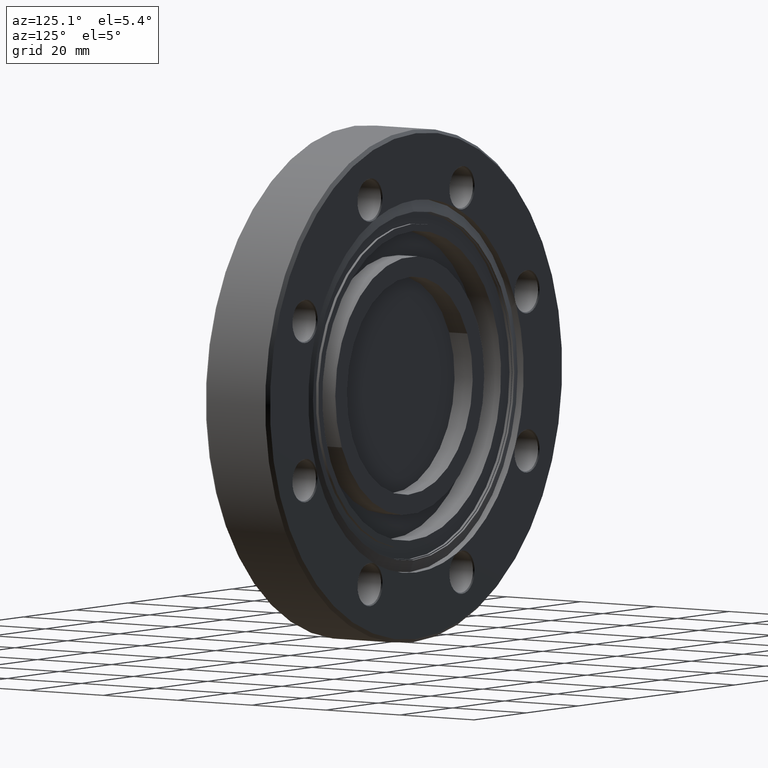
[diagram: clean part render]
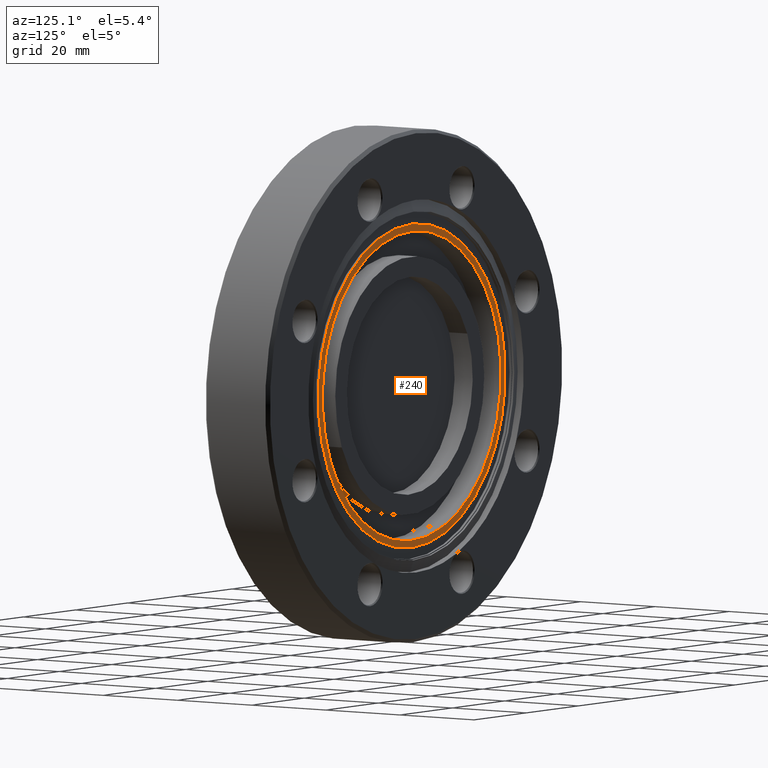
[diagram: same view with one face highlighted and labeled with its STEP entity id]
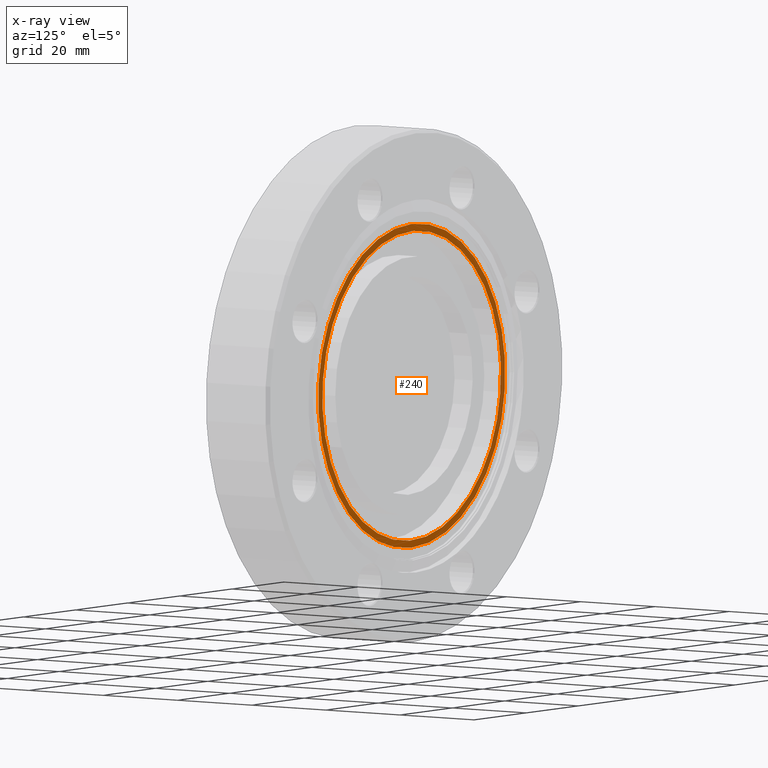
[diagram: x-ray of the same camera — body ghosted, the highlighted face saturated]
A machine part, auxiliary view. The second image highlights one B-rep face of the part: STEP entity #240.
The next image is the same camera in x-ray: the body ghosted, the highlighted face saturated — about 0% of this face is hidden behind the body in this view.
In plain terms, the highlighted planar face has unit normal (-0, 1, -0).
Its self-contained STEP definition (entity closure, byte-faithful):
#5 = AXIS2_PLACEMENT_3D ( 'NONE', #121, #820, #380 ) ;
#37 = EDGE_CURVE ( 'NONE', #2455, #305, #2749, .T. ) ;
#121 = CARTESIAN_POINT ( 'NONE',  ( 0.000000000000000000, -0.04599999999999999922, 0.000000000000000000 ) ) ;
#240 = ADVANCED_FACE ( 'NONE', ( #2310, #920 ), #1802, .T. ) ;
#305 = VERTEX_POINT ( 'NONE', #1151 ) ;
#306 = DIRECTION ( 'NONE',  ( -0.000000000000000000, 1.000000000000000000, -0.000000000000000000 ) ) ;
#380 = DIRECTION ( 'NONE',  ( 0.000000000000000000, 0.000000000000000000, 1.000000000000000000 ) ) ;
#394 = CARTESIAN_POINT ( 'NONE',  ( -1.269264136490842798, -0.04600000000000002004, 0.4569130681192609678 ) ) ;
#417 = DIRECTION ( 'NONE',  ( -1.507351704061755296E-17, 1.000000000000000000, -1.699636614603576539E-17 ) ) ;
#510 = AXIS2_PLACEMENT_3D ( 'NONE', #394, #696, #1790 ) ;
#515 = CARTESIAN_POINT ( 'NONE',  ( 0.000000000000000000, -0.04599999999999999922, 0.000000000000000000 ) ) ;
#519 = ORIENTED_EDGE ( 'NONE', *, *, #611, .F. ) ;
#561 = ORIENTED_EDGE ( 'NONE', *, *, #1535, .T. ) ;
#611 = EDGE_CURVE ( 'NONE', #305, #2455, #1743, .T. ) ;
#654 = EDGE_LOOP ( 'NONE', ( #519, #2871 ) ) ;
#683 = AXIS2_PLACEMENT_3D ( 'NONE', #1022, #306, #2632 ) ;
#696 = DIRECTION ( 'NONE',  ( -1.297276433052638209E-17, 1.000000000000000000, -1.116066071189244055E-17 ) ) ;
#820 = DIRECTION ( 'NONE',  ( -0.000000000000000000, 1.000000000000000000, -0.000000000000000000 ) ) ;
#920 = FACE_BOUND ( 'NONE', #654, .T. ) ;
#1022 = CARTESIAN_POINT ( 'NONE',  ( 0.000000000000000000, -0.04599999999999999922, 0.000000000000000000 ) ) ;
#1151 = CARTESIAN_POINT ( 'NONE',  ( -0.4569130681192608012, -0.04600000000000002004, -1.269264136490842798 ) ) ;
#1313 = EDGE_CURVE ( 'NONE', #2247, #1701, #1323, .T. ) ;
#1323 = CIRCLE ( 'NONE', #5, 1.411500000000000199 ) ;
#1335 = CARTESIAN_POINT ( 'NONE',  ( 1.728588956996489354E-16, -0.04599999999999999922, -1.411500000000000199 ) ) ;
#1363 = DIRECTION ( 'NONE',  ( -0.3387050171380731611, -1.265681983721396522E-17, -0.9408926141518475506 ) ) ;
#1393 = CARTESIAN_POINT ( 'NONE',  ( 0.000000000000000000, -0.04599999999999999922, 1.411500000000000199 ) ) ;
#1450 = DIRECTION ( 'NONE',  ( -1.507351704061755296E-17, 1.000000000000000000, -1.699636614603576539E-17 ) ) ;
#1535 = EDGE_CURVE ( 'NONE', #1701, #2247, #2767, .T. ) ;
#1663 = EDGE_LOOP ( 'NONE', ( #2093, #561 ) ) ;
#1701 = VERTEX_POINT ( 'NONE', #1335 ) ;
#1738 = AXIS2_PLACEMENT_3D ( 'NONE', #515, #1450, #2576 ) ;
#1743 = CIRCLE ( 'NONE', #2982, 1.349000000000000421 ) ;
#1789 = CARTESIAN_POINT ( 'NONE',  ( 0.000000000000000000, -0.04599999999999999922, 0.000000000000000000 ) ) ;
#1790 = DIRECTION ( 'NONE',  ( -0.3387050171380731611, -1.489492359777341978E-17, -0.9408926141518476616 ) ) ;
#1802 = PLANE ( 'NONE',  #510 ) ;
#2093 = ORIENTED_EDGE ( 'NONE', *, *, #1313, .T. ) ;
#2247 = VERTEX_POINT ( 'NONE', #1393 ) ;
#2310 = FACE_OUTER_BOUND ( 'NONE', #1663, .T. ) ;
#2455 = VERTEX_POINT ( 'NONE', #2655 ) ;
#2576 = DIRECTION ( 'NONE',  ( -0.3387050171380731611, -1.265681983721396522E-17, -0.9408926141518475506 ) ) ;
#2632 = DIRECTION ( 'NONE',  ( 0.000000000000000000, 0.000000000000000000, 1.000000000000000000 ) ) ;
#2655 = CARTESIAN_POINT ( 'NONE',  ( 0.4569130681192605792, -0.04599999999999997841, 1.269264136490842576 ) ) ;
#2749 = CIRCLE ( 'NONE', #1738, 1.349000000000000421 ) ;
#2767 = CIRCLE ( 'NONE', #683, 1.411500000000000199 ) ;
#2871 = ORIENTED_EDGE ( 'NONE', *, *, #37, .F. ) ;
#2982 = AXIS2_PLACEMENT_3D ( 'NONE', #1789, #417, #1363 ) ;